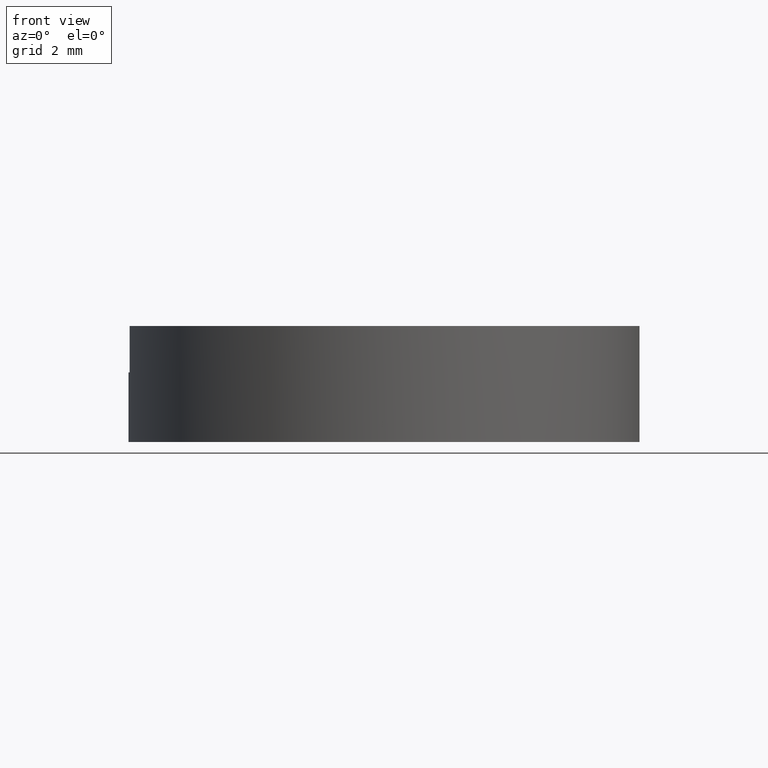
[diagram: clean part render]
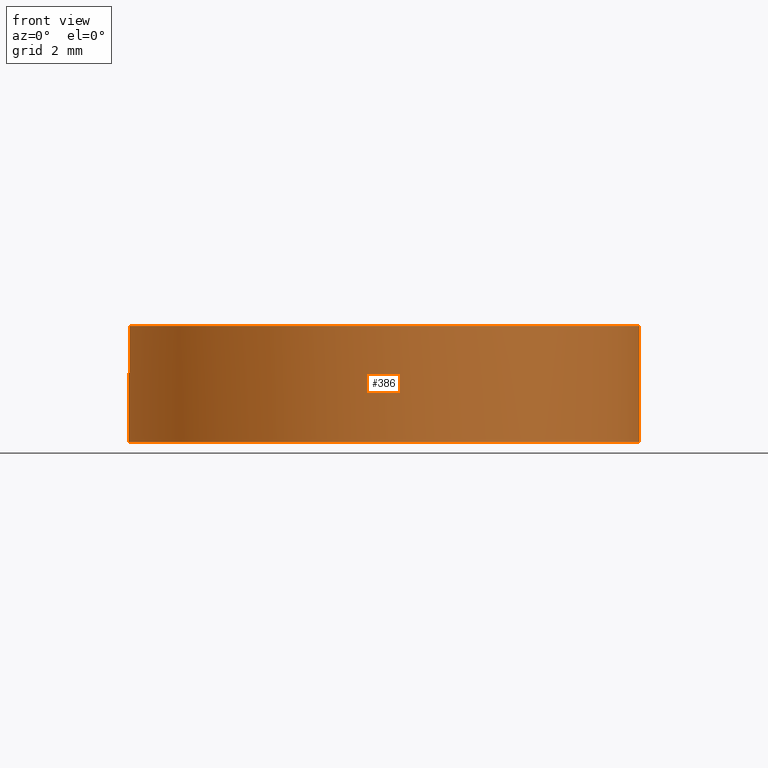
[diagram: same view with one face highlighted and labeled with its STEP entity id]
A machine part, front view. The second image highlights one B-rep face of the part: STEP entity #386.
In plain terms, the highlighted cylindrical surface (partial cylindrical patch) has radius 5.5 mm, axis along (-0, -0, -1).
Its self-contained STEP definition (entity closure, byte-faithful):
#7 = LINE ( 'NONE', #28, #11 ) ;
#11 = VECTOR ( 'NONE', #257, 1000.000000000000000 ) ;
#17 = EDGE_CURVE ( 'NONE', #548, #297, #581, .T. ) ;
#20 = EDGE_CURVE ( 'NONE', #297, #740, #588, .T. ) ;
#28 = CARTESIAN_POINT ( 'NONE',  ( -5.477225575051632767, -0.5000000000003046452, 2.500000000000000000 ) ) ;
#41 = CARTESIAN_POINT ( 'NONE',  ( -5.477225575051632767, -0.5000000000003046452, 1.500000000000000000 ) ) ;
#46 = DIRECTION ( 'NONE',  ( -0.000000000000000000, -0.000000000000000000, -1.000000000000000000 ) ) ;
#54 = ORIENTED_EDGE ( 'NONE', *, *, #169, .T. ) ;
#55 = CARTESIAN_POINT ( 'NONE',  ( 0.000000000000000000, 0.000000000000000000, 2.500000000000000000 ) ) ;
#74 = DIRECTION ( 'NONE',  ( -0.000000000000000000, -0.000000000000000000, -1.000000000000000000 ) ) ;
#100 = CARTESIAN_POINT ( 'NONE',  ( -5.500000000000000000, 0.000000000000000000, 1.500000000000000000 ) ) ;
#103 = AXIS2_PLACEMENT_3D ( 'NONE', #535, #337, #598 ) ;
#112 = EDGE_CURVE ( 'NONE', #243, #486, #7, .T. ) ;
#133 = CARTESIAN_POINT ( 'NONE',  ( 5.500000000000000000, 6.735557395310442023E-16, 2.500000000000000000 ) ) ;
#163 = CIRCLE ( 'NONE', #652, 5.500000000000000000 ) ;
#169 = EDGE_CURVE ( 'NONE', #486, #548, #445, .T. ) ;
#176 = ORIENTED_EDGE ( 'NONE', *, *, #17, .T. ) ;
#186 = FACE_OUTER_BOUND ( 'NONE', #680, .T. ) ;
#240 = DIRECTION ( 'NONE',  ( 0.000000000000000000, 0.000000000000000000, 1.000000000000000000 ) ) ;
#241 = ORIENTED_EDGE ( 'NONE', *, *, #558, .F. ) ;
#243 = VERTEX_POINT ( 'NONE', #416 ) ;
#257 = DIRECTION ( 'NONE',  ( -0.000000000000000000, -0.000000000000000000, -1.000000000000000000 ) ) ;
#297 = VERTEX_POINT ( 'NONE', #554 ) ;
#305 = CARTESIAN_POINT ( 'NONE',  ( -5.500000000000000000, 0.000000000000000000, 2.500000000000000000 ) ) ;
#323 = VECTOR ( 'NONE', #74, 1000.000000000000000 ) ;
#334 = DIRECTION ( 'NONE',  ( 1.000000000000000000, 0.000000000000000000, 0.000000000000000000 ) ) ;
#337 = DIRECTION ( 'NONE',  ( 0.000000000000000000, -0.000000000000000000, -1.000000000000000000 ) ) ;
#367 = DIRECTION ( 'NONE',  ( 0.000000000000000000, 0.000000000000000000, 1.000000000000000000 ) ) ;
#386 = ADVANCED_FACE ( 'NONE', ( #186 ), #677, .T. ) ;
#414 = ORIENTED_EDGE ( 'NONE', *, *, #20, .T. ) ;
#416 = CARTESIAN_POINT ( 'NONE',  ( -5.477225575051632767, -0.5000000000003046452, 2.500000000000000000 ) ) ;
#422 = CARTESIAN_POINT ( 'NONE',  ( 5.500000000000000000, 6.735557395310442023E-16, 0.000000000000000000 ) ) ;
#425 = VECTOR ( 'NONE', #522, 1000.000000000000000 ) ;
#445 = CIRCLE ( 'NONE', #103, 5.500000000000000000 ) ;
#486 = VERTEX_POINT ( 'NONE', #41 ) ;
#496 = VERTEX_POINT ( 'NONE', #502 ) ;
#502 = CARTESIAN_POINT ( 'NONE',  ( 5.500000000000000000, 6.735557395310442023E-16, 2.500000000000000000 ) ) ;
#517 = CARTESIAN_POINT ( 'NONE',  ( 0.000000000000000000, 0.000000000000000000, 2.500000000000000000 ) ) ;
#522 = DIRECTION ( 'NONE',  ( -0.000000000000000000, -0.000000000000000000, -1.000000000000000000 ) ) ;
#523 = ORIENTED_EDGE ( 'NONE', *, *, #635, .F. ) ;
#535 = CARTESIAN_POINT ( 'NONE',  ( 0.000000000000000000, 0.000000000000000000, 1.500000000000000000 ) ) ;
#548 = VERTEX_POINT ( 'NONE', #100 ) ;
#554 = CARTESIAN_POINT ( 'NONE',  ( -5.500000000000000000, 0.000000000000000000, 0.000000000000000000 ) ) ;
#558 = EDGE_CURVE ( 'NONE', #243, #496, #163, .T. ) ;
#568 = ORIENTED_EDGE ( 'NONE', *, *, #112, .T. ) ;
#581 = LINE ( 'NONE', #305, #323 ) ;
#588 = CIRCLE ( 'NONE', #694, 5.500000000000000000 ) ;
#598 = DIRECTION ( 'NONE',  ( -1.000000000000000000, 0.000000000000000000, 0.000000000000000000 ) ) ;
#601 = CARTESIAN_POINT ( 'NONE',  ( 0.000000000000000000, 0.000000000000000000, 0.000000000000000000 ) ) ;
#628 = DIRECTION ( 'NONE',  ( -1.000000000000000000, 0.000000000000000000, 0.000000000000000000 ) ) ;
#635 = EDGE_CURVE ( 'NONE', #496, #740, #683, .T. ) ;
#648 = DIRECTION ( 'NONE',  ( 1.000000000000000000, 0.000000000000000000, 0.000000000000000000 ) ) ;
#652 = AXIS2_PLACEMENT_3D ( 'NONE', #55, #367, #334 ) ;
#654 = AXIS2_PLACEMENT_3D ( 'NONE', #517, #46, #628 ) ;
#677 = CYLINDRICAL_SURFACE ( 'NONE', #654, 5.500000000000000000 ) ;
#680 = EDGE_LOOP ( 'NONE', ( #523, #241, #568, #54, #176, #414 ) ) ;
#683 = LINE ( 'NONE', #133, #425 ) ;
#694 = AXIS2_PLACEMENT_3D ( 'NONE', #601, #240, #648 ) ;
#740 = VERTEX_POINT ( 'NONE', #422 ) ;